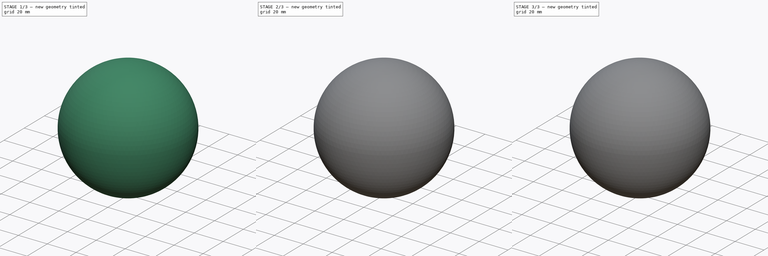
[diagram: build sequence overview — one tinted view per stage of 3, left to right]
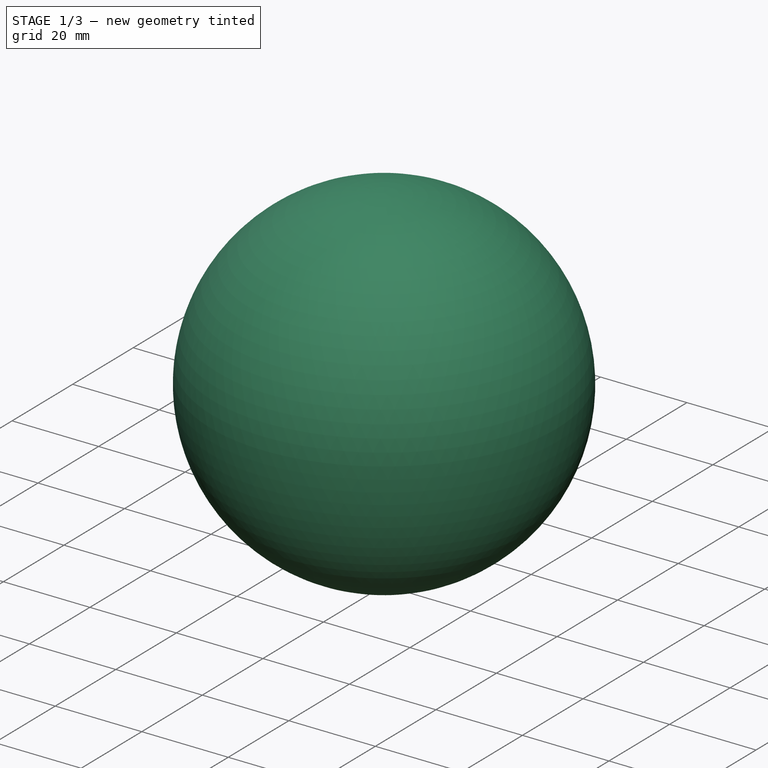
[diagram: stage 1 of 3 — iso view after this stage's code; geometry added in this stage tinted green]
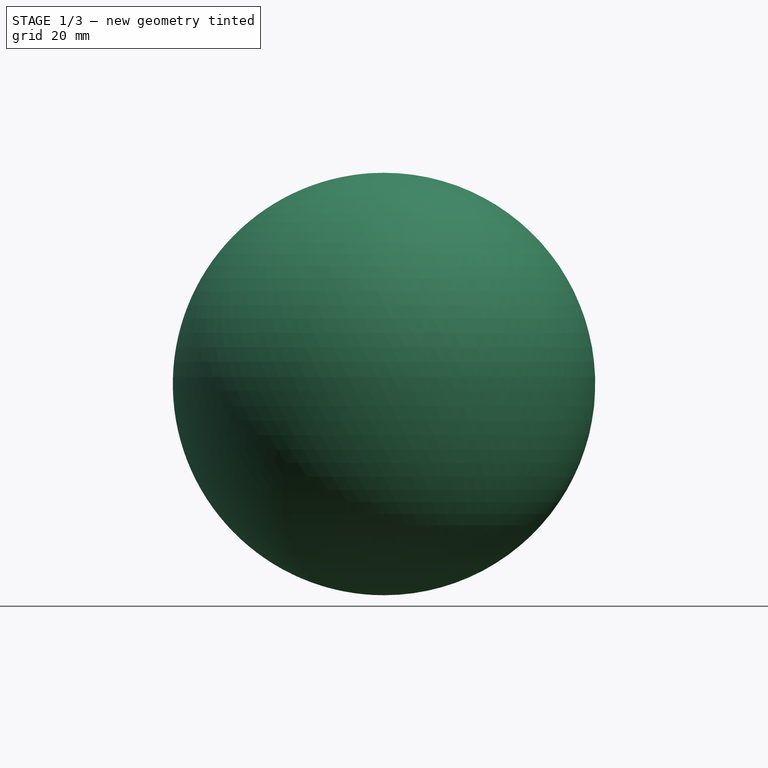
[diagram: stage 1 of 3 — front view after this stage's code; geometry added in this stage tinted green]
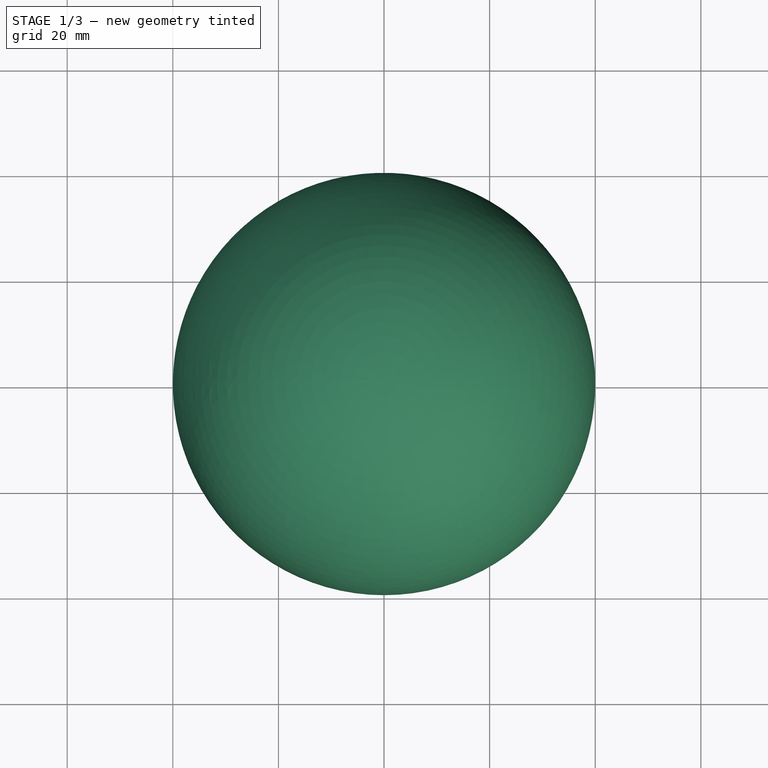
[diagram: stage 1 of 3 — top view after this stage's code; geometry added in this stage tinted green]
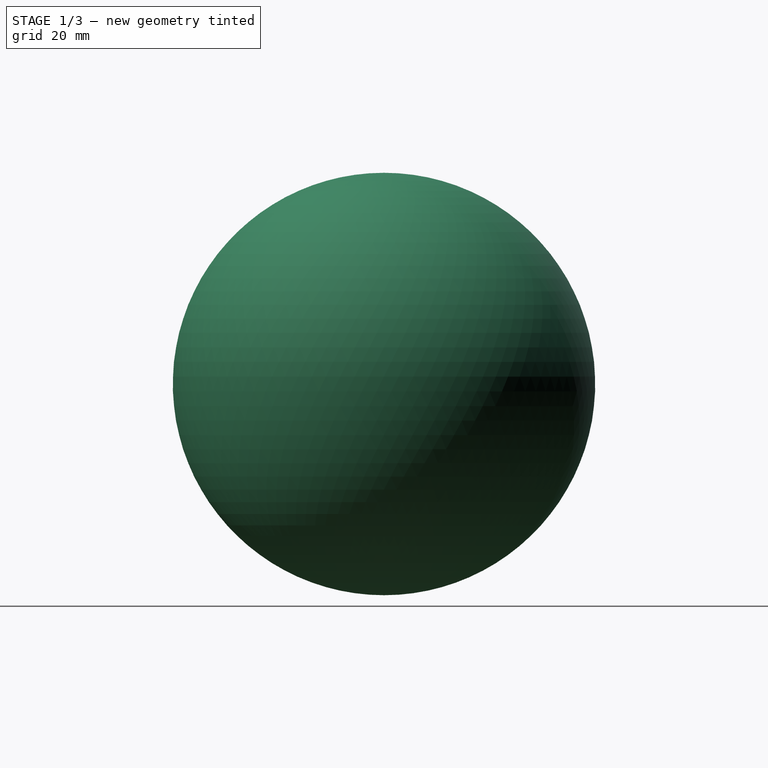
[diagram: stage 1 of 3 — right view after this stage's code; geometry added in this stage tinted green]
FCSTD DOCUMENT  (FreeCAD 0.18R16131 (Git))
Label: KugelFeuer
License: All rights reserved
LicenseURL: http://en.wikipedia.org/wiki/All_rights_reserved
objects: PartDesign::ShapeBinder×8, PartDesign::Line×8, Sketcher::SketchObject×5, PartDesign::Body×5, PartDesign::Pad×3, Part::FeaturePython×2, PartDesign::Pocket×1, Spreadsheet::Sheet×1, PartDesign::Plane×1, PartDesign::Revolution×1, PartDesign::FeatureBase×1
note: 40 computed .brp shape members not serialized (recipe doc carries the construction recipe); baked Part::Feature solids carry a one-line shape summary decoded from their .brp

FEATURE [PartDesign::Line] DatumLine003
  AttacherType = Attacher::AttachEngineLine
  MapMode = 29
  Placement = pos=(0,0.875,61.75) rot=(0.57735,-0.57735,-0.57735;2.0944rad)
  Support = -> [Pad001]
FEATURE [PartDesign::Body] Body001  label="Centre_Body"
  Group = -> [Sketch002,DatumLine,CopyPocket,DatumLine001,CopyPocket001,DatumLine002,CopyPocket002,Pad001,DatumLine003]
  Origin = -> Origin001
  Tip = -> Pad001
FEATURE [PartDesign::ShapeBinder] CopyArray
  Placement = pos=(0,0,30) rot=(0,0,1;0rad)
  TraceSupport = false
FEATURE [PartDesign::Plane] DatumPlane
  Length = 25.6569
  MapMode = 4
  Placement = pos=(0,0,30) rot=(0.57735,0.57735,0.57735;2.0944rad)
  ResizeMode = 0
  Support = -> [CopyArray]
  Width = 45.6569
FEATURE [PartDesign::ShapeBinder] CopyArray001
  TraceSupport = false
FEATURE [PartDesign::Line] DatumLine004
  AttacherType = Attacher::AttachEngineLine
  MapMode = 29
  Placement = pos=(1.07e-14,-8.66025,0) rot=(0.57735,0.57735,0.57735;2.0944rad)
  Support = -> [CopyArray001]
FEATURE [Sketcher::SketchObject] Sketch004  label="LED_Arc_Sketch"
  ExternalGeometry = -> [DatumLine004]
  MapMode = 5
  Placement = pos=(0,0,0) rot=(0.57735,0.57735,0.57735;2.0944rad)
  Support = -> [YZ_Plane002]
  expr: Constraints[22] = Dim.Board_Thickness
  expr: Constraints[18] = Dim.Board_Thickness
  expr: Constraints[16] = Dim.Board_Base_Length + 2 * Dim.Board_Thickness
  sketch-geometry (12):
    g0: ArcOfCircle CenterX=0 CenterY=31.75 CenterZ=0 NormalX=0 NormalY=0 NormalZ=1 AngleXU=0 Radius=32.9099 StartAngle=1.83708 EndAngle=4.4461
    g1: ArcOfCircle CenterX=0 CenterY=31.75 CenterZ=0 NormalX=0 NormalY=0 NormalZ=1 AngleXU=0 Radius=34.7239 StartAngle=1.83708 EndAngle=4.4461
    g2: LineSegment StartX=-8.66031 StartY=63.5 StartZ=0 EndX=-6.91031 EndY=63.5 EndZ=0
    g3: LineSegment StartX=-6.91031 StartY=63.5 StartZ=0 EndX=-6.91031 EndY=65.25 EndZ=0
    g4: LineSegment StartX=-6.91031 StartY=65.25 StartZ=0 EndX=-9.13765 EndY=65.25 EndZ=0
    g5: LineSegment StartX=-8.66025 StartY=-6.04e-14 StartZ=0 EndX=-6.91025 EndY=-6.04e-14 EndZ=0
    g6: LineSegment StartX=-6.91025 StartY=-6.04e-14 StartZ=0 EndX=-6.91025 EndY=-1.75 EndZ=0
    g7: LineSegment StartX=-9.13759 StartY=-1.75 StartZ=0 EndX=-6.91025 EndY=-1.75 EndZ=0
    g8: LineSegment [constr] StartX=-8.66031 StartY=63.5 StartZ=0 EndX=-8.66025 EndY=-5.68e-14 EndZ=0
    g9: LineSegment [constr] StartX=-8.66031 StartY=63.5 StartZ=0 EndX=-13.4841 EndY=62.1842 EndZ=0
    g10: LineSegment [constr] StartX=-8.66031 StartY=63.5 StartZ=0 EndX=-9.13765 EndY=65.25 EndZ=0
    g11: Circle [constr] CenterX=0 CenterY=31.75 CenterZ=0 NormalX=0 NormalY=0 NormalZ=1 AngleXU=0 Radius=38.5
  constraints (33):
    c: Coincident(g0,g-3)
    c: Horizontal(g2)
    c: Coincident(g3,g2)
    c: Vertical(g3)
    c: Coincident(g4,g3)
    c: Coincident(g4,g1)
    c: Horizontal(g4)
    c: Coincident(g5,g0)
    c: Horizontal(g5)
    c: Coincident(g6,g5)
    c: Vertical(g6)
    c: Coincident(g7,g1)
    c: Coincident(g7,g6)
    c: Equal(g5,g2)
    c: Equal(g6,g3)
    c: Horizontal(g7)
    c: DistanceY(g0,g0) = 63.5
    c: Coincident(g2,g0)
    c: DistanceY(g3,g3) = 1.75
    c: Equal(g6,g3)
    c: Coincident(g8,g0)
    c: Coincident(g8,g0)
    c: DistanceX(g2,g2) = 1.75
    c: Tangent(g9,g0) = -1.5708
    c: Distance(g9) = 5
    c: Coincident(g10,g1)
    c: Perpendicular(g10,g9)
    c: Coincident(g10,g0)
    c: Equal(g4,g7)
    c: Coincident(g1,g0)
    c: Diameter(g11) = 77
    c: Coincident(g11,g0)
    c: PointOnObject(g0,g-2)
FEATURE [PartDesign::ShapeBinder] CopyArray002
  Placement = pos=(0,0,33) rot=(0,0,1;0rad)
  TraceSupport = false
FEATURE [PartDesign::Line] DatumLine005
  AttacherType = Attacher::AttachEngineLine
  MapMode = 29
  Placement = pos=(1.07e-14,-8.66025,33) rot=(0.57735,0.57735,0.57735;2.0944rad)
  Support = -> [CopyArray002]
FEATURE [PartDesign::Pad] Pad002
  Length = 6
  Length2 = 100
  Midplane = true
  Placement = pos=(0,0,0) rot=(0.57735,0.57735,0.57735;2.0944rad)
  Profile = -> Sketch004
  Type = 0
  expr: Length = Dim.Arc_width
FEATURE [Sketcher::SketchObject] Sketch005  label="Glass_Ball_Sketch"
  MapMode = 5
  Placement = pos=(0,0,0) rot=(1,0,0;1.5708rad)
  Support = -> [XZ_Plane003]
  expr: Constraints[12] = (Dim.Board_Base_Length + Dim.Board_Thickness * 2) / 2
  expr: Constraints[5] = Dim.Ball_Outside_diameter
  expr: Constraints[2] = Dim.Ball_Inside_diameter
  sketch-geometry (4):
    g0: ArcOfCircle CenterX=0 CenterY=31.75 CenterZ=0 NormalX=0 NormalY=0 NormalZ=1 AngleXU=0 Radius=38.5 StartAngle=1.5708 EndAngle=4.71239
    g1: ArcOfCircle CenterX=0 CenterY=31.75 CenterZ=0 NormalX=0 NormalY=0 NormalZ=1 AngleXU=0 Radius=40 StartAngle=1.5708 EndAngle=4.71239
    g2: LineSegment StartX=2.4e-15 StartY=70.25 StartZ=0 EndX=2.4e-15 EndY=71.75 EndZ=0
    g3: LineSegment StartX=-7.3e-15 StartY=-8.25 StartZ=0 EndX=-7.1e-15 EndY=-6.75 EndZ=0
  constraints (13):
    c: PointOnObject(g0,g-2)
    c: PointOnObject(g0,g-2)
    c: Diameter(g0) = 77
    c: Coincident(g1,g0)
    c: PointOnObject(g1,g-2)
    c: Diameter(g1) = 80
    c: PointOnObject(g1,g-2)
    c: PointOnObject(g0,g-2)
    c: Coincident(g2,g0)
    c: Coincident(g2,g1)
    c: Coincident(g3,g1)
    c: Coincident(g3,g0)
    c: DistanceY(g-1,g0) = 31.75
FEATURE [PartDesign::Revolution] Revolution
  Angle = 360
  Axis = (0,2e-16,1)
  Base = (0,0,0)
  Placement = pos=(0,0,0) rot=(1,0,0;1.5708rad)
  Profile = -> Sketch005
  ReferenceAxis = -> Sketch005 [V_Axis]
FEATURE [PartDesign::Body] Body003  label="Glass_Ball"
  Group = -> [Sketch005,Revolution]
  Origin = -> Origin003
  Tip = -> Revolution
FEATURE [PartDesign::FeatureBase] Clone
  BaseFeature = -> Sketch002
  Placement = pos=(0,0,0) rot=(1,0,0;1.5708rad)
FEATURE [PartDesign::Body] Body004  label="Centre_Body_2D"
  BaseFeature = -> Sketch002
  Group = -> [Clone]
  Origin = -> Origin004
  Placement = pos=(0,0,0) rot=(1,0,0;1.5708rad)
  Tip = -> Clone
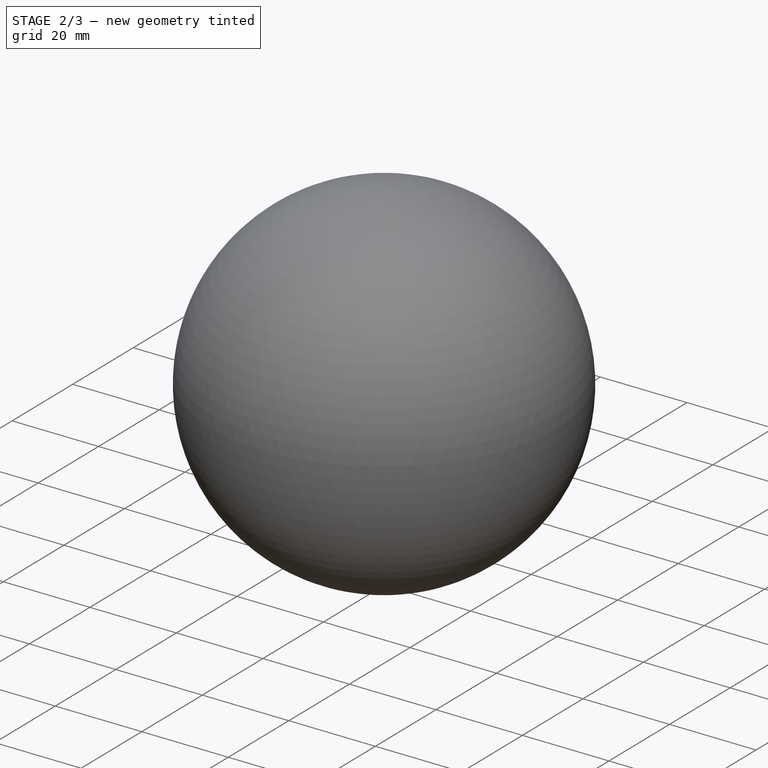
[diagram: stage 2 of 3 — iso view after this stage's code; geometry added in this stage tinted green]
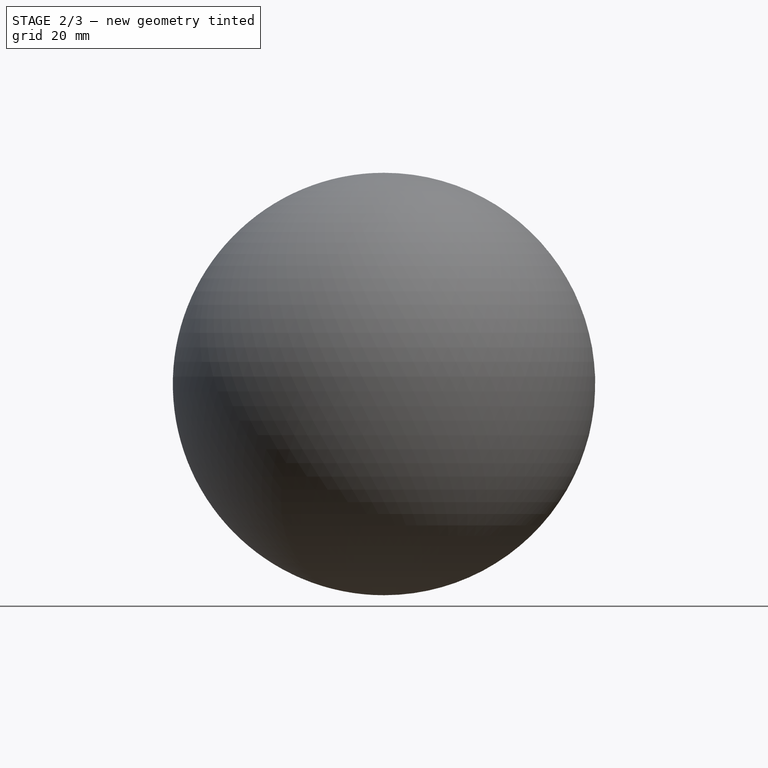
[diagram: stage 2 of 3 — front view after this stage's code; geometry added in this stage tinted green]
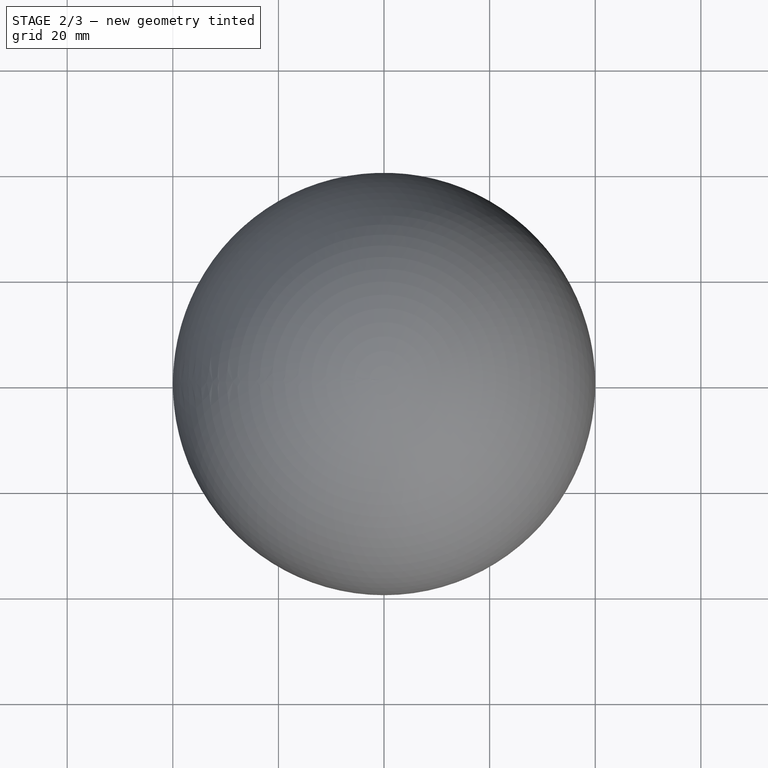
[diagram: stage 2 of 3 — top view after this stage's code; geometry added in this stage tinted green]
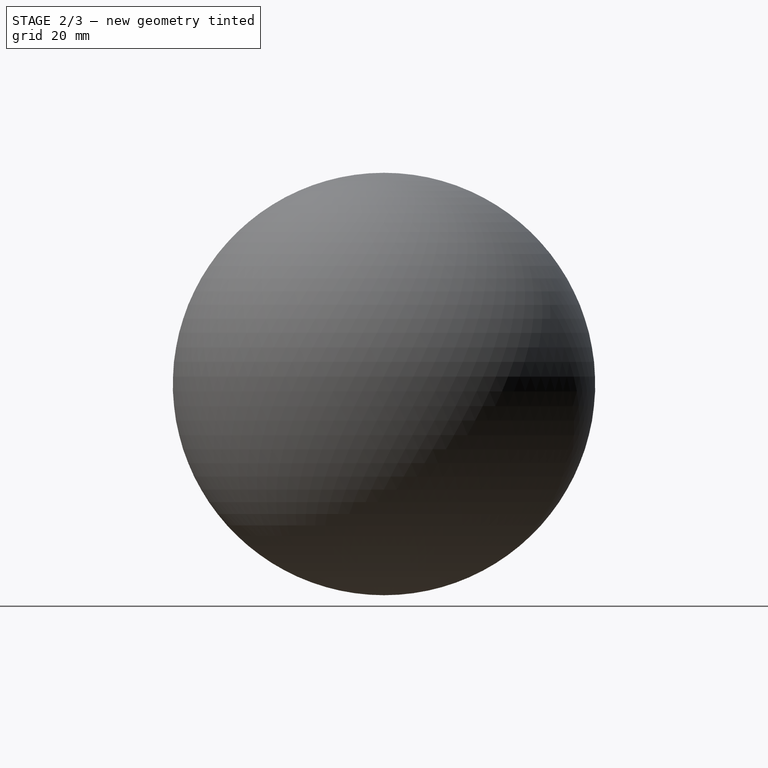
[diagram: stage 2 of 3 — right view after this stage's code; geometry added in this stage tinted green]
FEATURE [Sketcher::SketchObject] Sketch
  MapMode = 5
  Support = -> [XY_Plane]
  expr: Constraints[19] = Dim.EndCap_Side
  sketch-geometry (7):
    g0: LineSegment StartX=5 StartY=-8.66025 StartZ=0 EndX=10 EndY=1.95e-14 EndZ=0
    g1: LineSegment StartX=10 StartY=1.95e-14 StartZ=0 EndX=5 EndY=8.66025 EndZ=0
    g2: LineSegment StartX=5 StartY=8.66025 StartZ=0 EndX=-5 EndY=8.66025 EndZ=0
    g3: LineSegment StartX=-5 StartY=8.66025 StartZ=0 EndX=-10 EndY=-1.07e-14 EndZ=0
    g4: LineSegment StartX=-10 StartY=-1.07e-14 StartZ=0 EndX=-5 EndY=-8.66025 EndZ=0
    g5: LineSegment StartX=-5 StartY=-8.66025 StartZ=0 EndX=5 EndY=-8.66025 EndZ=0
    g6: Circle [constr] CenterX=0 CenterY=0 CenterZ=0 NormalX=0 NormalY=0 NormalZ=1 AngleXU=0 Radius=10
  constraints (16):
    c: Coincident(g0,g1)
    c: Coincident(g1,g2)
    c: Coincident(g2,g3)
    c: Coincident(g3,g4)
    c: Coincident(g4,g5)
    c: Coincident(g5,g0)
    c: Equal(g0, g1-g5) x5
    c: PointOnObject(g0,g6)
    c: PointOnObject(g1,g6)
    c: PointOnObject(g2,g6)
    c: PointOnObject(g3,g6)
    c: PointOnObject(g4,g6)
    c: PointOnObject(g5,g6)
    c: Horizontal(g2)
    c: Coincident(g6,g-1)
    c: DistanceX(g2,g2) = 10
FEATURE [PartDesign::Pad] Pad
  Length = 1.75
  Length2 = 100
  Profile = -> Sketch
  Type = 0
  expr: Length = Dim.Board_Thickness
FEATURE [Spreadsheet::Sheet] Spreadsheet  label="Dim"
  cells = A1=EndCap_Side; B1(EndCap_Side)=10; A2=EndCap_Slot_Lengnth; B2(EndCap_Slot_Lengnth)=10; A3=EndCap_Slot_Height; B3(EndCap_Slot_Height)==Board_Thickness; A4=Endcap_Offset; B4(Endcap_Offset)==Board_Base_Length + Board_Thickness; A5=Board_Width; B5(Board_Width)=15; A7=Board_Thickness; B7(Board_Thickness)=1.75; A8=Board_Base_Length; B8(Board_Base_Length)=60; A10=Board_Sholder; B10(Board_Sholder)==(Board_Width - EndCap_Slot_Lengnth) / 2; A12=Tie_Hole; B12(Tie_Hole)=3; A14=Board_Tab_Length; B14(Board_Tab_Length)==10 + Board_Thickness; A16=Arc_Length; B16(Arc_Length)=85.86260221363266; C16=Measured with  print (f"Length: {Gui.Selection.getSelectionEx()[0].SubObjects[0].Length}" ); A17=Arc_Tabs; B17(Arc_Tabs)=2.7; A18=Total arch board length; B18==Arc_Length + 2 * Arc_Tabs; A19=Ball_Inside_diameter; B19(Ball_Inside_diameter)=77; A20=Ball_Outside_diameter; B20(Ball_Outside_diameter)=80; A21=Arc_width; B21(Arc_width)=6
FEATURE [PartDesign::ShapeBinder] CopyPocket
  TraceSupport = false
FEATURE [PartDesign::Line] DatumLine
  AttacherType = Attacher::AttachEngineLine
  MapMode = 29
  Placement = pos=(0,1.5,0) rot=(0.57735,0.57735,0.57735;2.0944rad)
  Support = -> [CopyPocket]
FEATURE [PartDesign::ShapeBinder] CopyPocket001
  TraceSupport = false
FEATURE [PartDesign::Line] DatumLine001
  AttacherType = Attacher::AttachEngineLine
  MapMode = 29
  Placement = pos=(5,1.5,0) rot=(0,1,0;3.14159rad)
  Support = -> [CopyPocket001]
FEATURE [PartDesign::ShapeBinder] CopyPocket002
  TraceSupport = false
FEATURE [PartDesign::Line] DatumLine002
  AttacherType = Attacher::AttachEngineLine
  MapMode = 29
  Placement = pos=(-5,1.5,0) rot=(0,1,0;3.14159rad)
  Support = -> [CopyPocket002]
FEATURE [Sketcher::SketchObject] Sketch002
  ExternalGeometry = -> [DatumLine002,DatumLine,DatumLine001]
  MapMode = 5
  Placement = pos=(0,0,0) rot=(1,0,0;1.5708rad)
  Support = -> [XZ_Plane001]
  expr: Constraints[11] = Dim.Board_Sholder
  expr: Constraints[16] = Dim.Board_Base_Length
  expr: Constraints[12] = Dim.EndCap_Slot_Lengnth
  expr: Constraints[15] = Dim.Board_Thickness
  sketch-geometry (12):
    g0: LineSegment StartX=-5 StartY=0 StartZ=0 EndX=5 EndY=0 EndZ=0
    g1: LineSegment StartX=7.5 StartY=61.75 StartZ=0 EndX=5 EndY=61.75 EndZ=0
    g2: LineSegment StartX=-5 StartY=61.75 StartZ=0 EndX=-7.5 EndY=61.75 EndZ=0
    g3: LineSegment StartX=-7.5 StartY=61.75 StartZ=0 EndX=-7.5 EndY=1.75 EndZ=0
    g4: LineSegment StartX=-7.5 StartY=1.75 StartZ=0 EndX=-5 EndY=1.75 EndZ=0
    g5: LineSegment StartX=-5 StartY=1.75 StartZ=0 EndX=-5 EndY=0 EndZ=0
    g6: LineSegment StartX=-5 StartY=63.5 StartZ=0 EndX=5 EndY=63.5 EndZ=0
    g7: LineSegment StartX=5 StartY=63.5 StartZ=0 EndX=5 EndY=61.75 EndZ=0
    g8: LineSegment StartX=-5 StartY=63.5 StartZ=0 EndX=-5 EndY=61.75 EndZ=0
    g9: LineSegment StartX=5 StartY=0 StartZ=0 EndX=5 EndY=1.75 EndZ=0
    g10: LineSegment StartX=5 StartY=1.75 StartZ=0 EndX=7.5 EndY=1.75 EndZ=0
    g11: LineSegment StartX=7.5 StartY=1.75 StartZ=0 EndX=7.5 EndY=61.75 EndZ=0
  constraints (36):
    c: PointOnObject(g0,g-1)
    c: PointOnObject(g0,g-1)
    c: Horizontal(g1)
    c: Coincident(g2,g3)
    c: Vertical(g3)
    c: Coincident(g3,g4)
    c: Coincident(g4,g5)
    c: Coincident(g5,g0)
    c: Vertical(g5)
    c: Horizontal(g2)
    c: Horizontal(g4)
    c: DistanceX(g2,g2) = 2.5
    c: DistanceX(g0,g0) = 10
    c: Equal(g2,g1)
    c: PointOnObject(g0,g-3)
    c: DistanceY(g5,g5) = 1.75
    c: DistanceY(g3,g3) = 60
    c: Horizontal(g6)
    c: Coincident(g7,g1)
    c: Equal(g7,g5)
    c: Equal(g6,g0)
    c: Coincident(g7,g6)
    c: Coincident(g8,g6)
    c: Coincident(g8,g2)
    c: Vertical(g8)
    c: Vertical(g7)
    c: Equal(g8,g7)
    c: Coincident(g9,g0)
    c: PointOnObject(g9,g-5)
    c: Coincident(g10,g9)
    c: Horizontal(g10)
    c: Coincident(g11,g10)
    c: Coincident(g11,g1)
    c: Vertical(g11)
    c: Equal(g5,g9)
    c: Equal(g10,g4)
FEATURE [PartDesign::Pad] Pad001
  Length = 1.75
  Length2 = 100
  Midplane = true
  Placement = pos=(0,0,0) rot=(1,0,0;1.5708rad)
  Profile = -> Sketch002
  Type = 0
  expr: Length = Dim.Board_Thickness
FEATURE [PartDesign::ShapeBinder] CopyArray003
  Placement = pos=(0,0,31.75) rot=(0,0,1;0rad)
  TraceSupport = false
FEATURE [PartDesign::Line] DatumLine006
  AttacherType = Attacher::AttachEngineLine
  MapMode = 29
  Placement = pos=(1.07e-14,-8.66025,31.75) rot=(0.57735,0.57735,0.57735;2.0944rad)
  Support = -> [CopyArray003]
FEATURE [PartDesign::ShapeBinder] CopyArray004
  Placement = pos=(0,0,30) rot=(0,0,1;0rad)
  TraceSupport = false
FEATURE [PartDesign::Line] DatumLine007
  AttacherType = Attacher::AttachEngineLine
  MapMode = 29
  Placement = pos=(5,-8.66025,30) rot=(0,0,1;0rad)
  Support = -> [CopyArray004]
FEATURE [PartDesign::Body] Body002  label="LED_Arc"
  Group = -> [Sketch004,DatumPlane,CopyArray,DatumLine004,CopyArray001,DatumLine005,CopyArray002,Pad002,DatumLine006,CopyArray003,DatumLine007,CopyArray004]
  Origin = -> Origin002
  Tip = -> Pad002
FEATURE [Part::FeaturePython] Array001  label="LED_Arc_Array"  # Draft array (typed FeaturePython)
  Angle = 360
  ArrayType = 1
  Axis = (0,0,1)
  Base = -> Body002
  Center = (0,0,0)
  Fuse = false
  IntervalAxis = (0,0,0)
  IntervalX = (10,0,0)
  IntervalY = (0,0,0)
  IntervalZ = (0,0,0)
  NumberPolar = 6
  NumberX = 1
  NumberY = 1
  NumberZ = 1
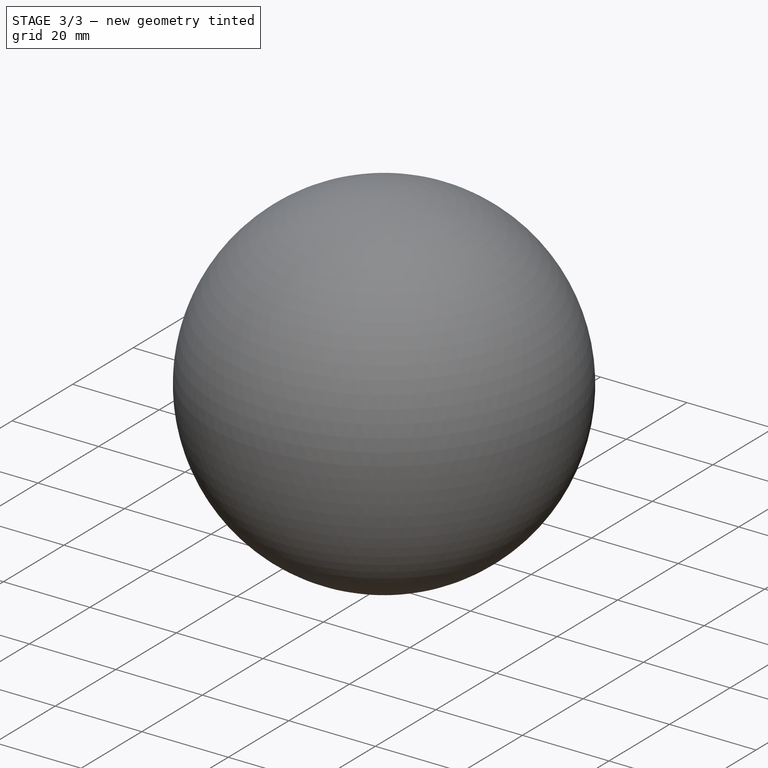
[diagram: stage 3 of 3 — iso view after this stage's code; geometry added in this stage tinted green]
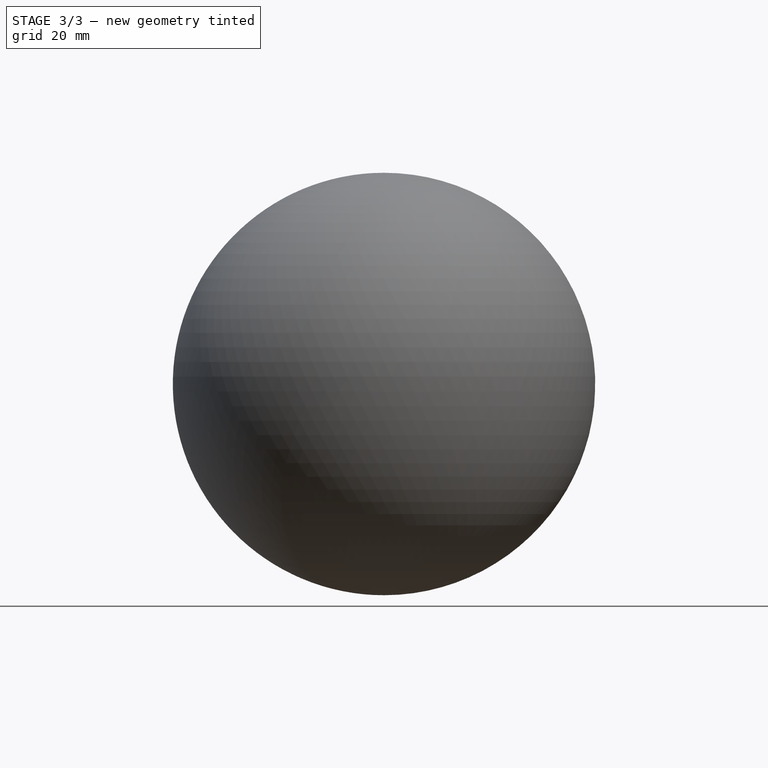
[diagram: stage 3 of 3 — front view after this stage's code; geometry added in this stage tinted green]
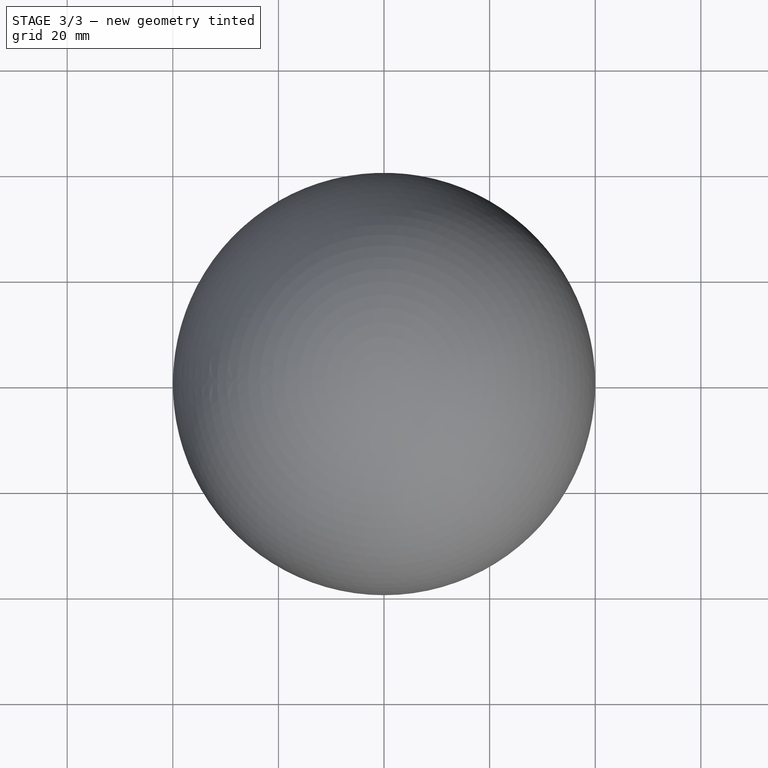
[diagram: stage 3 of 3 — top view after this stage's code; geometry added in this stage tinted green]
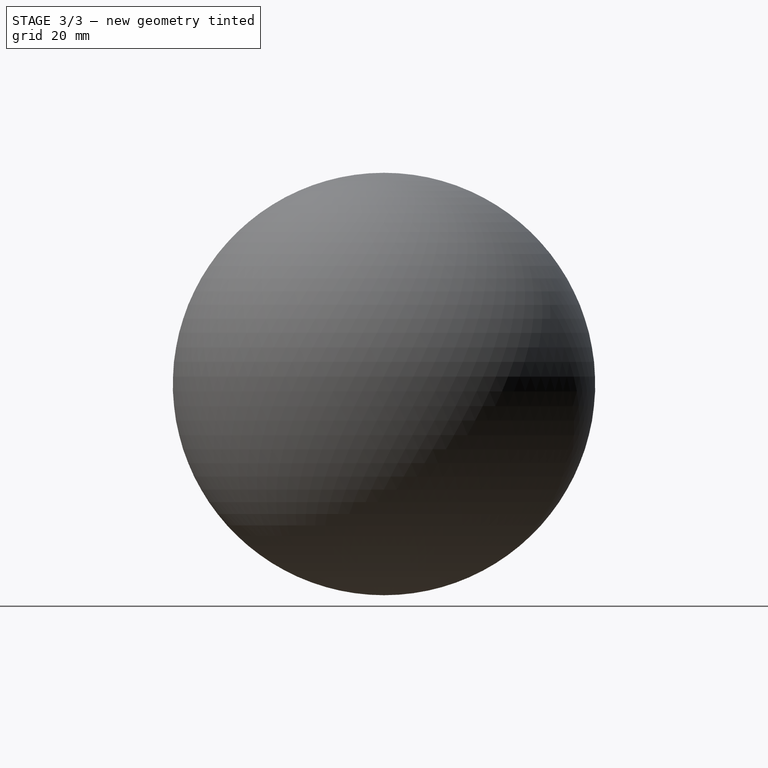
[diagram: stage 3 of 3 — right view after this stage's code; geometry added in this stage tinted green]
FEATURE [Sketcher::SketchObject] Sketch001
  MapMode = 5
  Placement = pos=(0,0,1.75) rot=(0,0,1;0rad)
  Support = -> [Pad]
  expr: Constraints[7] = Dim.EndCap_Slot_Height
  expr: Constraints[6] = Dim.EndCap_Slot_Lengnth
  sketch-geometry (4):
    g0: LineSegment StartX=-5 StartY=0.875 StartZ=0 EndX=5 EndY=0.875 EndZ=0
    g1: LineSegment StartX=5 StartY=0.875 StartZ=0 EndX=5 EndY=-0.875 EndZ=0
    g2: LineSegment StartX=5 StartY=-0.875 StartZ=0 EndX=-5 EndY=-0.875 EndZ=0
    g3: LineSegment StartX=-5 StartY=-0.875 StartZ=0 EndX=-5 EndY=0.875 EndZ=0
  constraints (10):
    c: Coincident(g0,g1)
    c: Coincident(g1,g2)
    c: Coincident(g2,g3)
    c: Coincident(g3,g0)
    c: Horizontal(g2)
    c: Vertical(g1)
    c: DistanceX(g0,g0) = 10
    c: DistanceY(g3,g3) = 1.75
    c: Symmetric(g0,g0,g-2)
    c: Symmetric(g2,g0,g-1)
FEATURE [PartDesign::Pocket] Pocket
  BaseFeature = -> Pad
  Length = 5
  Length2 = 100
  Profile = -> Sketch001
  Type = 2
FEATURE [PartDesign::Body] Body  label="EndCap"
  Group = -> [Sketch,Pad,Sketch001,Pocket]
  Origin = -> Origin
  Tip = -> Pocket
FEATURE [Part::FeaturePython] Array  label="End_Caps"  # Draft array (typed FeaturePython)
  Angle = 360
  ArrayType = 0
  Axis = (0,0,1)
  Base = -> Body
  Center = (0,0,0)
  Fuse = false
  IntervalAxis = (0,0,0)
  IntervalX = (0,0,0)
  IntervalY = (0,0,0)
  IntervalZ = (0,0,61.75)
  NumberPolar = 1
  NumberX = 1
  NumberY = 1
  NumberZ = 2
  expr: IntervalZ.z = Dim.Endcap_Offset
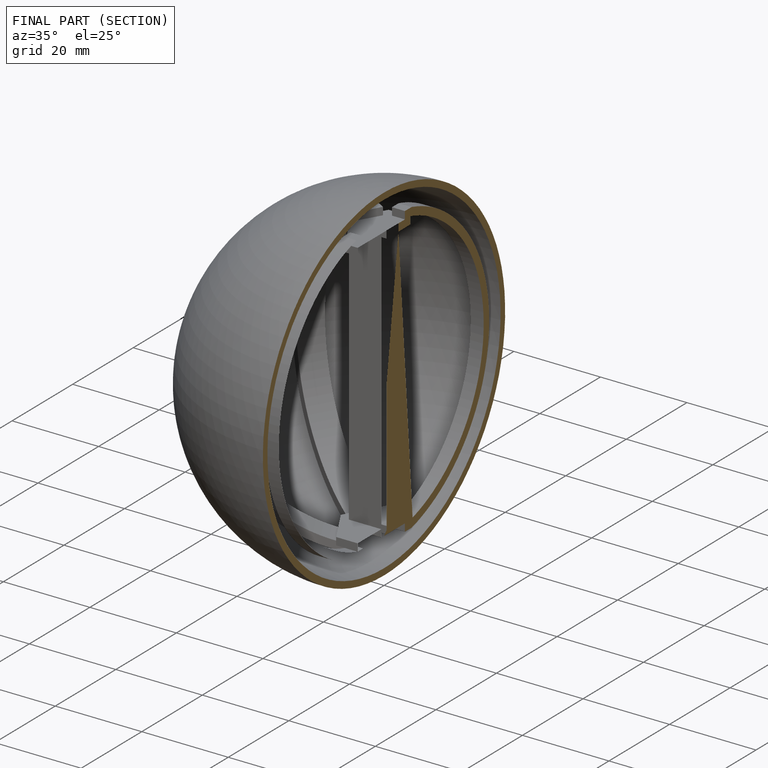
[diagram: finished part — half-section view (interior)]
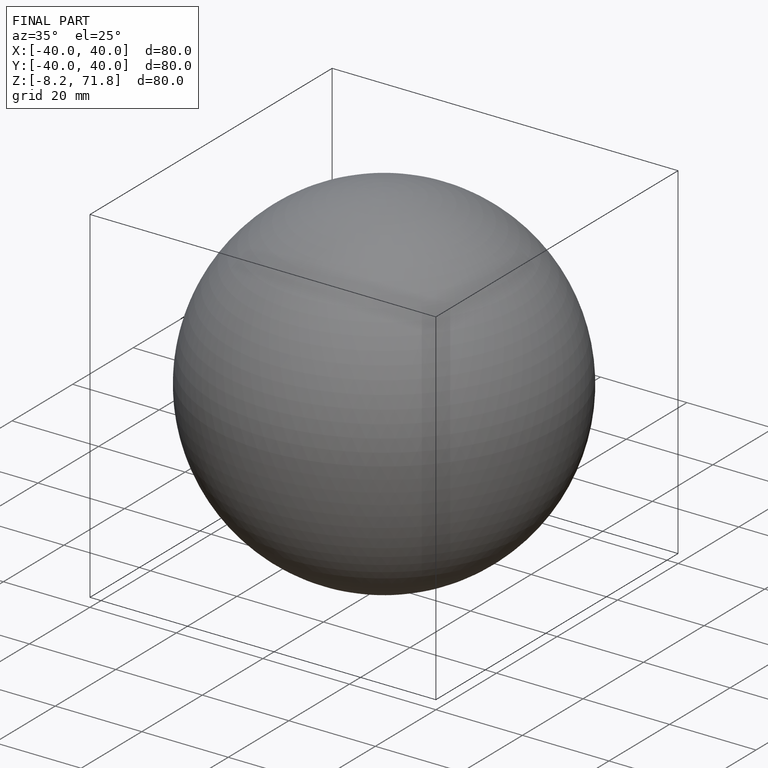
[diagram: finished part — iso view with bounding-box wireframe]
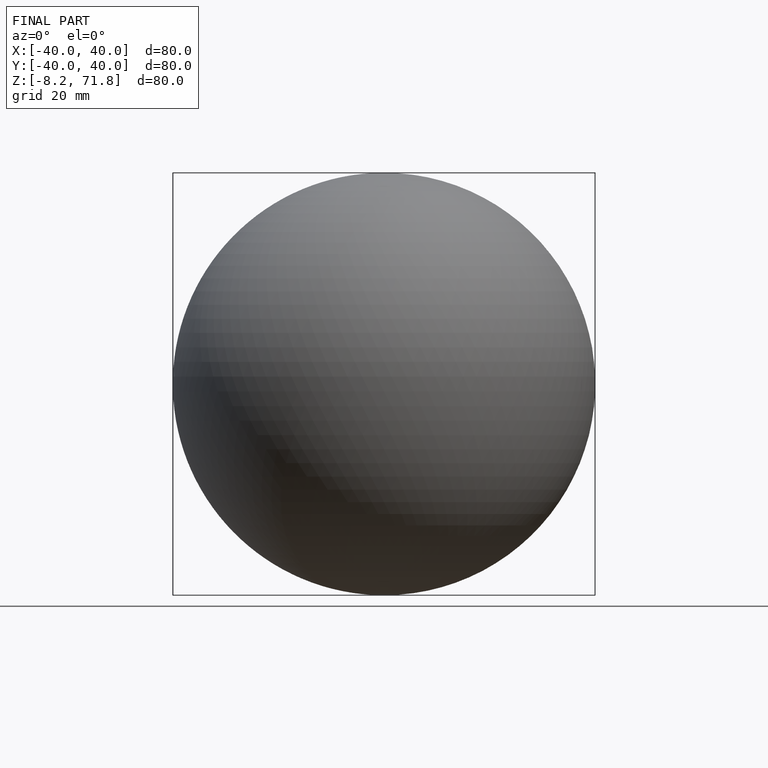
[diagram: finished part — front view with bounding-box wireframe]
